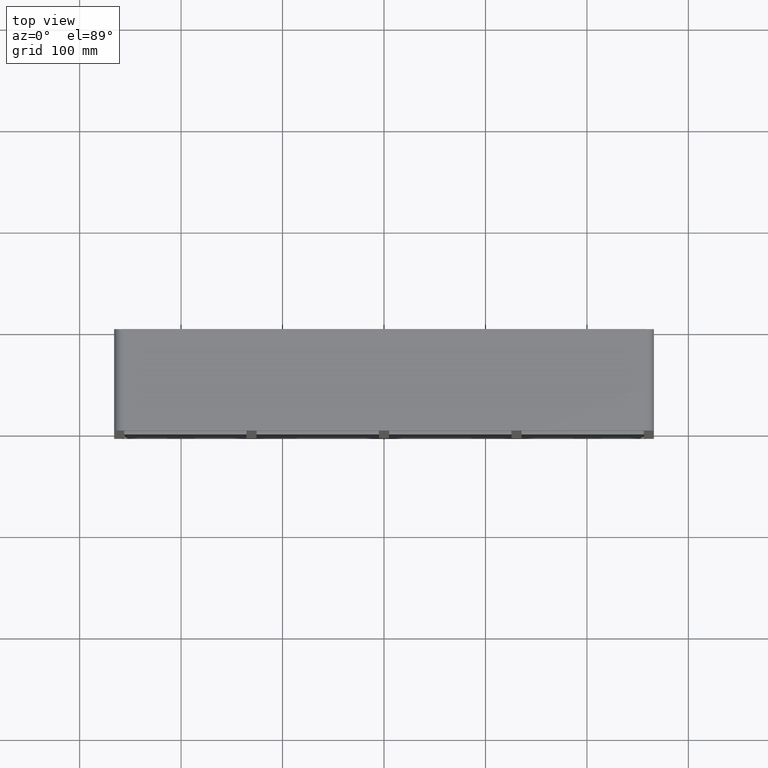
[diagram: clean part render]
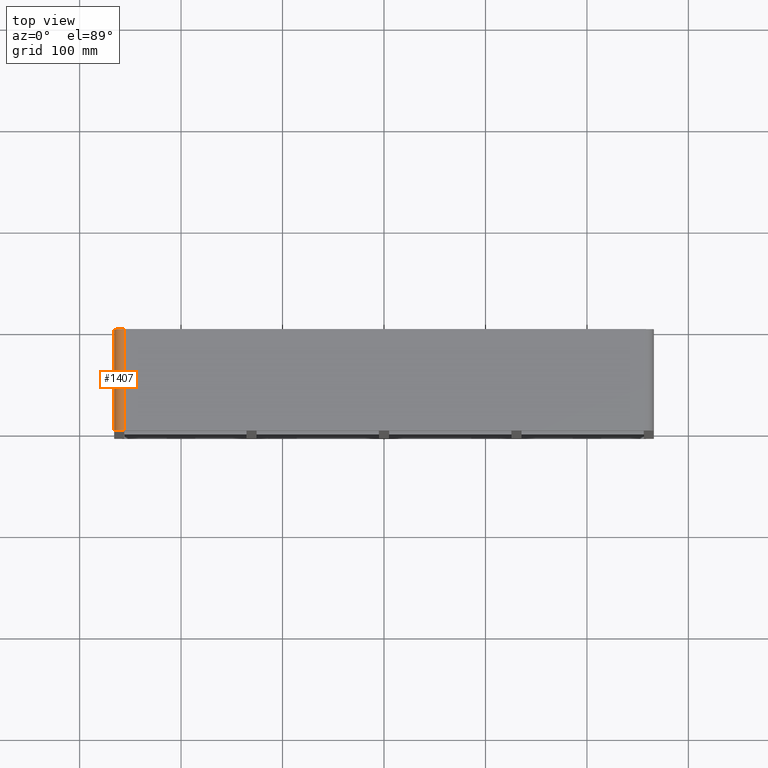
[diagram: same view with one face highlighted and labeled with its STEP entity id]
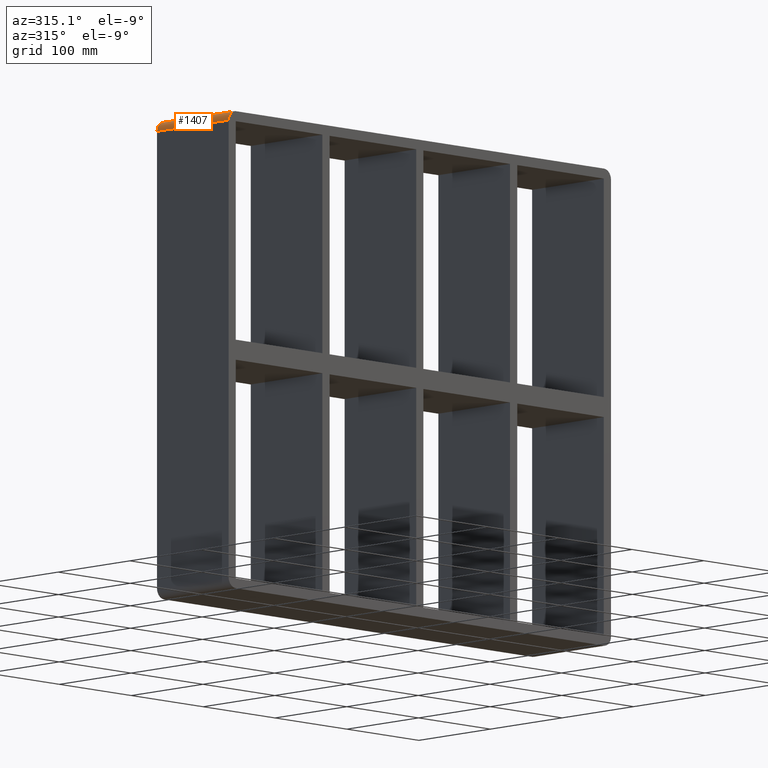
[diagram: same view with one face highlighted and labeled with its STEP entity id]
A machine part, top view. The second image highlights one B-rep face of the part: STEP entity #1407.
A second angle (auxiliary view) of the same face is appended — the face is thin or edge-on in the first view.
In plain terms, the highlighted cylindrical surface (edge-blend (fillet) strip) has radius 10 mm, axis along (0, 1, 0).
Its self-contained STEP definition (entity closure, byte-faithful):
#522=CARTESIAN_POINT('',(-256.0,-3.0,238.0));
#523=VERTEX_POINT('',#522);
#530=CARTESIAN_POINT('',(-266.0,-3.0,228.0));
#531=VERTEX_POINT('',#530);
#532=CARTESIAN_POINT('',(-256.0,-3.0,228.0));
#533=DIRECTION('',(0.0,1.0,0.0));
#534=DIRECTION('',(-0.707106781186547,0.0,0.707106781186547));
#535=AXIS2_PLACEMENT_3D('',#532,#533,#534);
#536=CIRCLE('',#535,9.999999999999998);
#537=EDGE_CURVE('',#531,#523,#536,.T.);
#793=CARTESIAN_POINT('',(-266.0,97.0,228.0));
#794=VERTEX_POINT('',#793);
#801=CARTESIAN_POINT('',(-256.0,97.0,238.0));
#802=VERTEX_POINT('',#801);
#803=CARTESIAN_POINT('',(-256.0,97.0,228.0));
#804=DIRECTION('',(0.0,-1.0,0.0));
#805=DIRECTION('',(-0.707106781186547,0.0,0.707106781186547));
#806=AXIS2_PLACEMENT_3D('',#803,#804,#805);
#807=CIRCLE('',#806,9.999999999999998);
#808=EDGE_CURVE('',#802,#794,#807,.T.);
#1381=CARTESIAN_POINT('',(-256.0,-3.0,238.0));
#1382=DIRECTION('',(0.0,1.0,0.0));
#1383=VECTOR('',#1382,100.0);
#1384=LINE('',#1381,#1383);
#1385=EDGE_CURVE('',#523,#802,#1384,.T.);
#1391=CARTESIAN_POINT('',(-256.0,0.0,228.0));
#1392=DIRECTION('',(0.0,1.0,0.0));
#1393=DIRECTION('',(-0.707106781186547,0.0,0.707106781186547));
#1394=AXIS2_PLACEMENT_3D('',#1391,#1392,#1393);
#1395=CYLINDRICAL_SURFACE('',#1394,10.0);
#1396=ORIENTED_EDGE('',*,*,#808,.T.);
#1397=CARTESIAN_POINT('',(-266.0,97.0,228.0));
#1398=DIRECTION('',(0.0,-1.0,0.0));
#1399=VECTOR('',#1398,100.0);
#1400=LINE('',#1397,#1399);
#1401=EDGE_CURVE('',#794,#531,#1400,.T.);
#1402=ORIENTED_EDGE('',*,*,#1401,.T.);
#1403=ORIENTED_EDGE('',*,*,#537,.T.);
#1404=ORIENTED_EDGE('',*,*,#1385,.T.);
#1405=EDGE_LOOP('',(#1396,#1402,#1403,#1404));
#1406=FACE_OUTER_BOUND('',#1405,.T.);
#1407=ADVANCED_FACE('',(#1406),#1395,.T.);